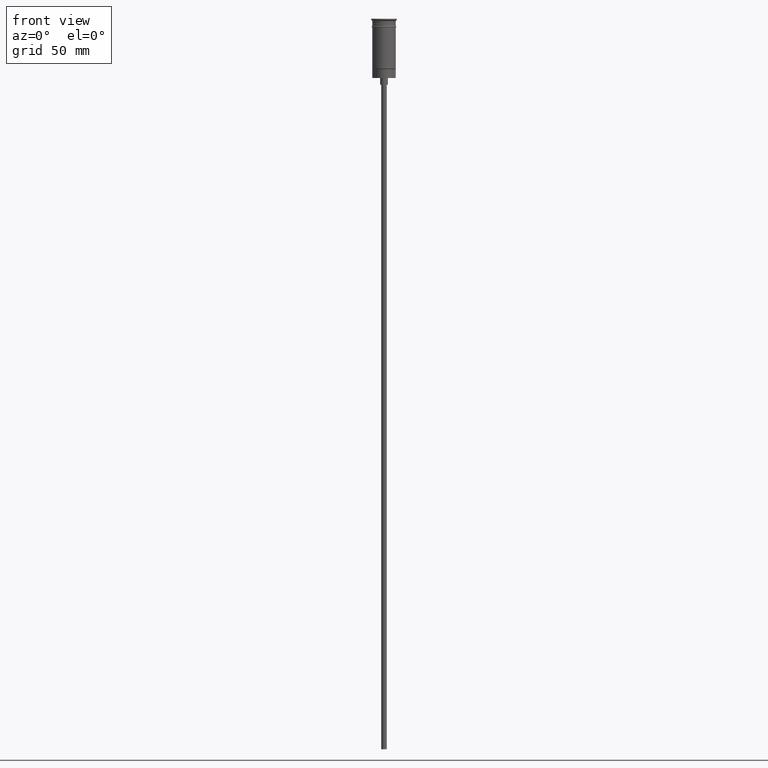
[diagram: clean part render]
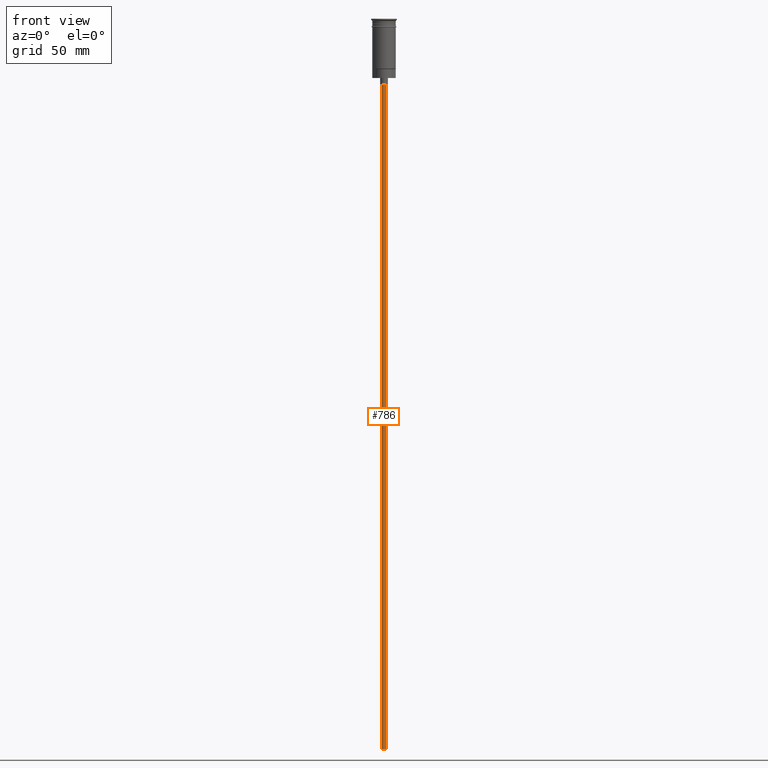
[diagram: same view with one face highlighted and labeled with its STEP entity id]
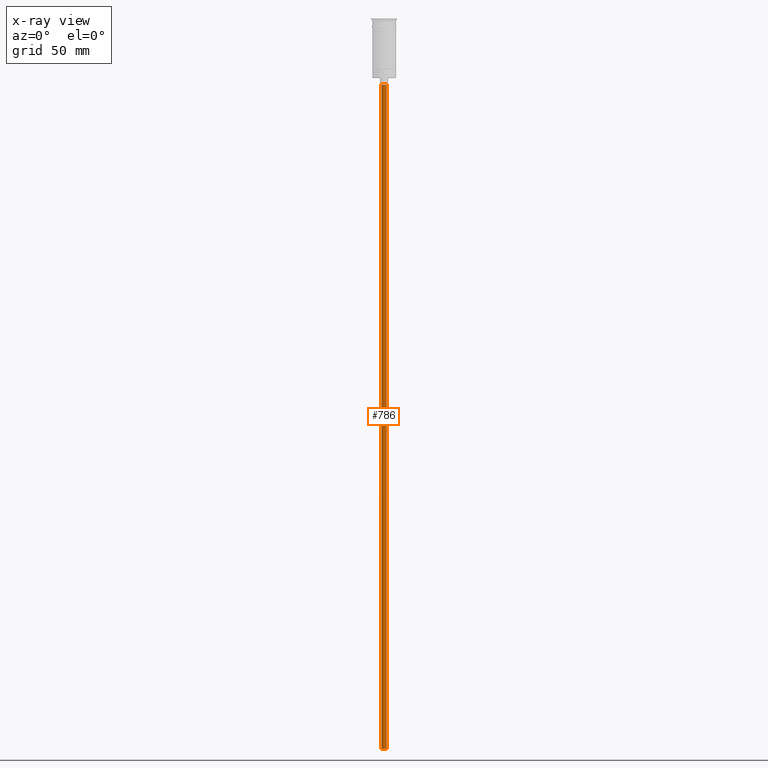
[diagram: x-ray of the same camera — body ghosted, the highlighted face saturated]
A machine part, front view. The second image highlights one B-rep face of the part: STEP entity #786.
The next image is the same camera in x-ray: the body ghosted, the highlighted face saturated — about 0% of this face is hidden behind the body in this view.
In plain terms, the highlighted cylindrical surface (edge-blend (fillet) strip) has radius 1.25 mm, axis along (-0, -0, 1).
Its self-contained STEP definition (entity closure, byte-faithful):
#19 = CIRCLE ( 'NONE', #1341, 1.250000000000000000 ) ;
#106 = CARTESIAN_POINT ( 'NONE',  ( 1.250000000000000000, 0.000000000000000000, -326.5000000000000000 ) ) ;
#107 = DIRECTION ( 'NONE',  ( 1.000000000000000000, 0.000000000000000000, 0.000000000000000000 ) ) ;
#112 = ORIENTED_EDGE ( 'NONE', *, *, #396, .T. ) ;
#128 = CARTESIAN_POINT ( 'NONE',  ( 1.250000000000000000, 0.000000000000000000, -29.50000000000000000 ) ) ;
#261 = EDGE_LOOP ( 'NONE', ( #649, #1302, #482, #112 ) ) ;
#281 = EDGE_CURVE ( 'NONE', #1400, #815, #499, .T. ) ;
#282 = DIRECTION ( 'NONE',  ( -1.000000000000000000, 0.000000000000000000, 0.000000000000000000 ) ) ;
#317 = CARTESIAN_POINT ( 'NONE',  ( 0.000000000000000000, 0.000000000000000000, -326.5000000000000000 ) ) ;
#396 = EDGE_CURVE ( 'NONE', #815, #1325, #19, .T. ) ;
#482 = ORIENTED_EDGE ( 'NONE', *, *, #281, .T. ) ;
#499 = LINE ( 'NONE', #106, #1595 ) ;
#521 = DIRECTION ( 'NONE',  ( -0.000000000000000000, -0.000000000000000000, 1.000000000000000000 ) ) ;
#577 = DIRECTION ( 'NONE',  ( 0.000000000000000000, 0.000000000000000000, -1.000000000000000000 ) ) ;
#611 = FACE_OUTER_BOUND ( 'NONE', #261, .T. ) ;
#635 = VERTEX_POINT ( 'NONE', #689 ) ;
#649 = ORIENTED_EDGE ( 'NONE', *, *, #1144, .F. ) ;
#677 = LINE ( 'NONE', #1434, #1226 ) ;
#689 = CARTESIAN_POINT ( 'NONE',  ( -1.250000000000000000, 1.530808498934191571E-16, -326.5000000000000000 ) ) ;
#716 = AXIS2_PLACEMENT_3D ( 'NONE', #1026, #521, #107 ) ;
#786 = ADVANCED_FACE ( 'NONE', ( #611 ), #1131, .T. ) ;
#815 = VERTEX_POINT ( 'NONE', #128 ) ;
#825 = DIRECTION ( 'NONE',  ( -1.000000000000000000, 0.000000000000000000, 0.000000000000000000 ) ) ;
#917 = CIRCLE ( 'NONE', #1507, 1.250000000000000000 ) ;
#998 = DIRECTION ( 'NONE',  ( -0.000000000000000000, -0.000000000000000000, 1.000000000000000000 ) ) ;
#1026 = CARTESIAN_POINT ( 'NONE',  ( 0.000000000000000000, 0.000000000000000000, -326.5000000000000000 ) ) ;
#1131 = CYLINDRICAL_SURFACE ( 'NONE', #716, 1.250000000000000000 ) ;
#1144 = EDGE_CURVE ( 'NONE', #635, #1325, #677, .T. ) ;
#1166 = CARTESIAN_POINT ( 'NONE',  ( 1.250000000000000000, 0.000000000000000000, -326.5000000000000000 ) ) ;
#1226 = VECTOR ( 'NONE', #1334, 1000.000000000000000 ) ;
#1302 = ORIENTED_EDGE ( 'NONE', *, *, #1596, .F. ) ;
#1325 = VERTEX_POINT ( 'NONE', #1407 ) ;
#1334 = DIRECTION ( 'NONE',  ( -0.000000000000000000, -0.000000000000000000, 1.000000000000000000 ) ) ;
#1341 = AXIS2_PLACEMENT_3D ( 'NONE', #1573, #1496, #282 ) ;
#1400 = VERTEX_POINT ( 'NONE', #1166 ) ;
#1407 = CARTESIAN_POINT ( 'NONE',  ( -1.250000000000000000, 1.530808498934191571E-16, -29.50000000000000000 ) ) ;
#1434 = CARTESIAN_POINT ( 'NONE',  ( -1.250000000000000000, 1.530808498934191571E-16, -326.5000000000000000 ) ) ;
#1496 = DIRECTION ( 'NONE',  ( 0.000000000000000000, 0.000000000000000000, -1.000000000000000000 ) ) ;
#1507 = AXIS2_PLACEMENT_3D ( 'NONE', #317, #577, #825 ) ;
#1573 = CARTESIAN_POINT ( 'NONE',  ( 0.000000000000000000, 0.000000000000000000, -29.50000000000000000 ) ) ;
#1595 = VECTOR ( 'NONE', #998, 1000.000000000000000 ) ;
#1596 = EDGE_CURVE ( 'NONE', #1400, #635, #917, .T. ) ;